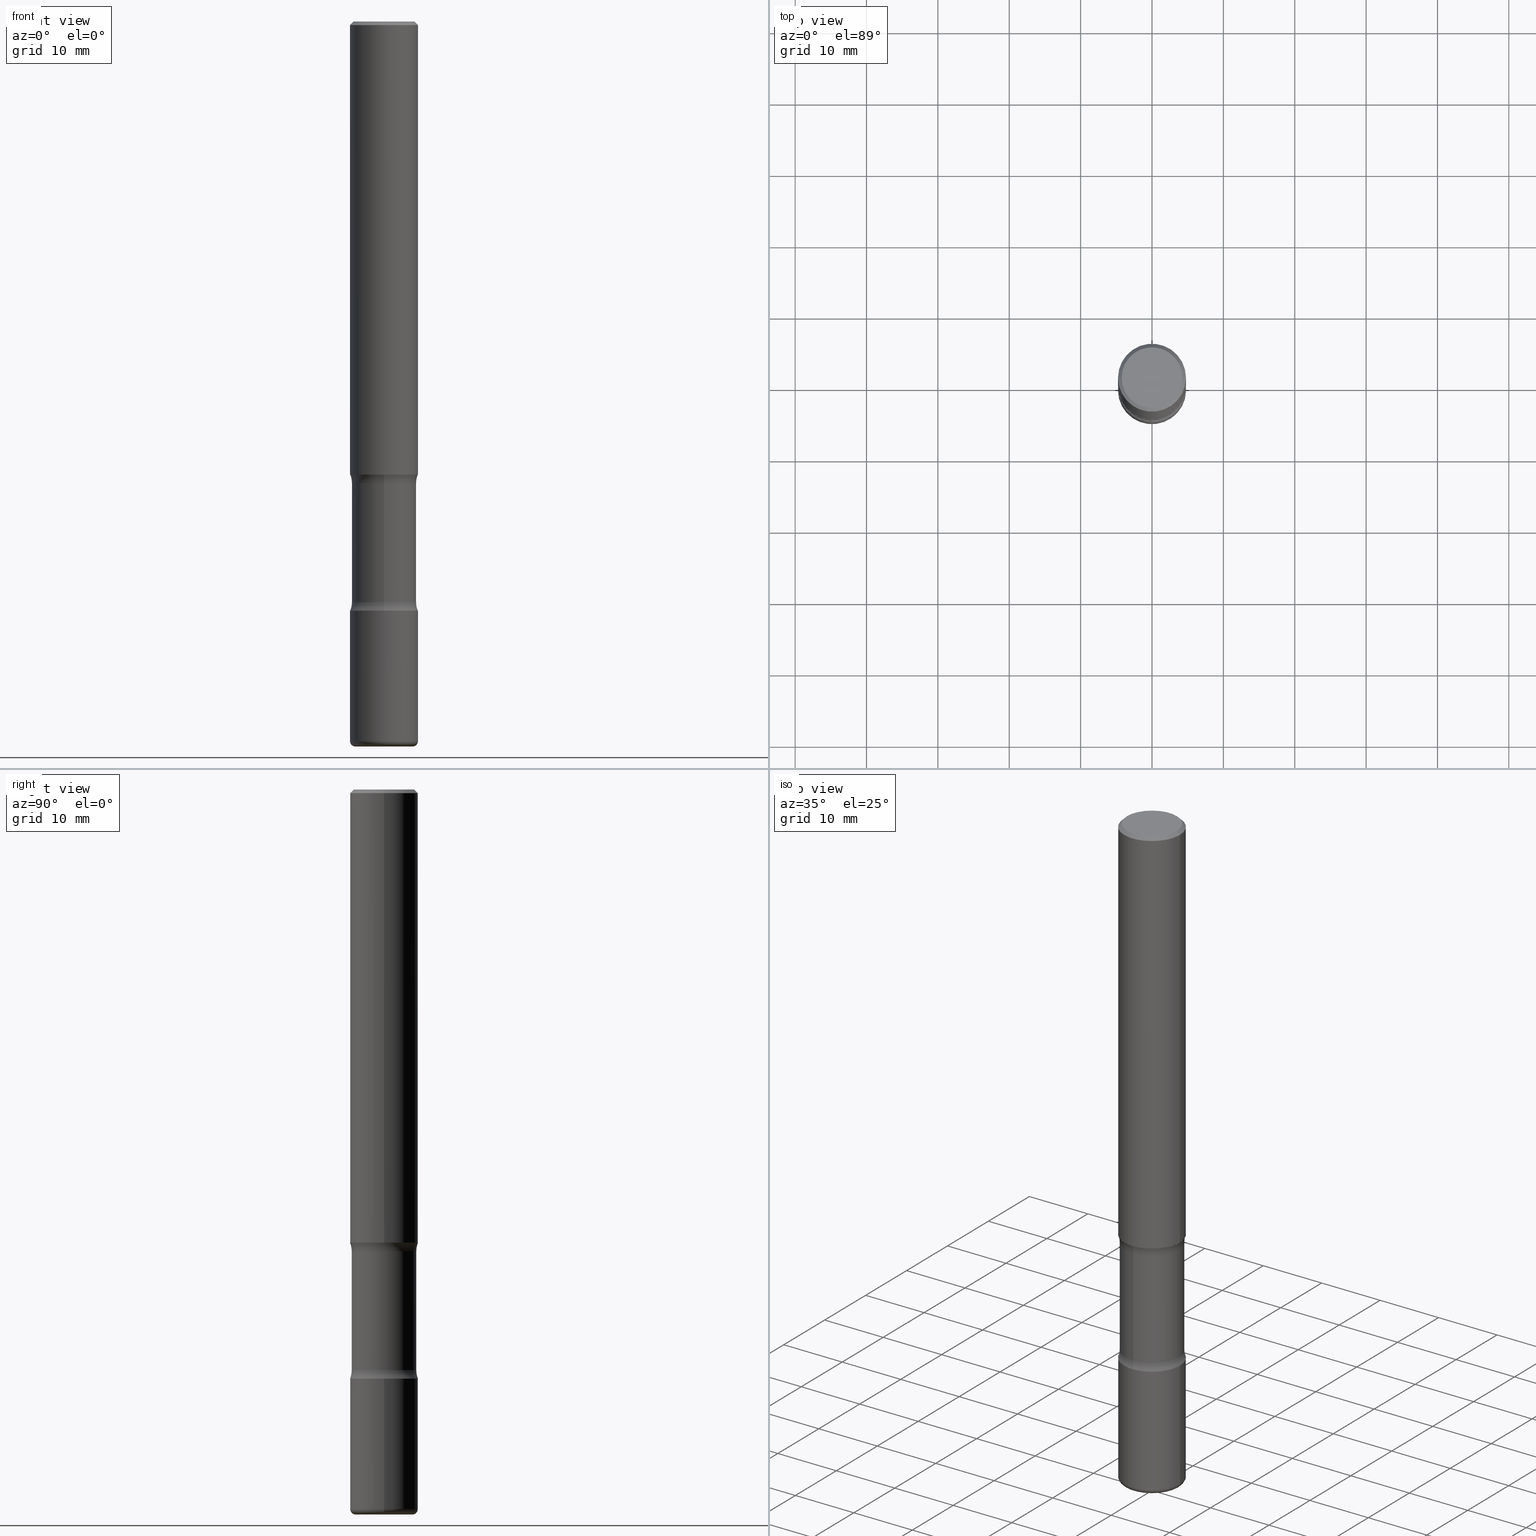
[diagram: canonical four-view strip — front | top / right | iso, engineering-drawing reading convention]
A machine part, canonical four-view strip (front | top / right | iso — engineering-drawing reading convention). The complete STEP part file that produces these views, byte-faithful:
ISO-10303-21;
HEADER;
FILE_DESCRIPTION (( 'STEP AP203' ),
    '1' );
FILE_NAME ('37842.STEP',
    '2024-03-02T00:42:31',
    ( '' ),
    ( '' ),
    'SwSTEP 2.0',
    'SolidWorks 2023',
    '' );
FILE_SCHEMA (( 'CONFIG_CONTROL_DESIGN' ));
ENDSEC;

DATA;
#1 = DIRECTION ( 'NONE',  ( -2.445468806185136597E-29, 3.491481338843145583E-15, 1.000000000000000000 ) ) ;
#2 = EDGE_CURVE ( 'NONE', #383, #272, #325, .T. ) ;
#3 = DIRECTION ( 'NONE',  ( 2.558681667686983511E-29, -3.329354077496592524E-15, -1.000000000000000000 ) ) ;
#4 = COORDINATED_UNIVERSAL_TIME_OFFSET ( 5, 0, .BEHIND. ) ;
#5 = CIRCLE ( 'NONE', #145, 0.1875000000000000833 ) ;
#6 = CARTESIAN_POINT ( 'NONE',  ( 7.831623907624765469E-29, -1.118148334468659010E-14, -3.202504112020091664 ) ) ;
#7 = CLOSED_SHELL ( 'NONE', ( #549, #542, #302, #78, #532, #56 ) ) ;
#8 = DIRECTION ( 'NONE',  ( 1.000000000000000000, 0.000000000000000000, 0.000000000000000000 ) ) ;
#9 = CARTESIAN_POINT ( 'NONE',  ( 6.158285255761511137E-29, -8.996978653423909512E-15, -2.547495887979908780 ) ) ;
#10 = CALENDAR_DATE ( 2024, 1, 3 ) ;
#11 = CARTESIAN_POINT ( 'NONE',  ( 9.781875224740546387E-29, -1.396592535537258233E-14, -4.000000000000000000 ) ) ;
#12 = DIRECTION ( 'NONE',  ( 1.000000000000000000, -6.860497997771530774E-15, 4.842784365940769113E-29 ) ) ;
#13 = EDGE_CURVE ( 'NONE', #383, #555, #441, .T. ) ;
#14 = LINE ( 'NONE', #314, #324 ) ;
#15 = AXIS2_PLACEMENT_3D ( 'NONE', #46, #3, #267 ) ;
#16 = CARTESIAN_POINT ( 'NONE',  ( 0.000000000000000000, 0.000000000000000000, 0.000000000000000000 ) ) ;
#17 = AXIS2_PLACEMENT_3D ( 'NONE', #345, #258, #128 ) ;
#18 = CIRCLE ( 'NONE', #381, 0.1875000000000001110 ) ;
#19 = DIRECTION ( 'NONE',  ( 2.558681667686983511E-29, -3.329354077496592524E-15, -1.000000000000000000 ) ) ;
#20 = DIRECTION ( 'NONE',  ( 2.558681667686983511E-29, -3.329354077496592524E-15, -1.000000000000000000 ) ) ;
#21 = ORIENTED_EDGE ( 'NONE', *, *, #269, .F. ) ;
#22 = DIRECTION ( 'NONE',  ( -2.438088387897960049E-29, 3.491481338843145188E-15, 1.000000000000000000 ) ) ;
#23 = DIRECTION ( 'NONE',  ( 1.000000000000000000, -6.982962677686265922E-15, 0.000000000000000000 ) ) ;
#24 = DIRECTION ( 'NONE',  ( 2.558681667686983511E-29, -3.329354077496592524E-15, -1.000000000000000000 ) ) ;
#25 = AXIS2_PLACEMENT_3D ( 'NONE', #407, #22, #339 ) ;
#26 = CARTESIAN_POINT ( 'NONE',  ( 7.947773620101696182E-29, -1.134731435124022600E-14, -3.250000000000000444 ) ) ;
#27 = ADVANCED_FACE ( 'NONE', ( #305 ), #545, .F. ) ;
#28 = CYLINDRICAL_SURFACE ( 'NONE', #459, 0.1875000000000000278 ) ;
#29 = ORIENTED_EDGE ( 'NONE', *, *, #292, .F. ) ;
#30 = EDGE_CURVE ( 'NONE', #363, #211, #172, .T. ) ;
#31 = ORIENTED_EDGE ( 'NONE', *, *, #266, .F. ) ;
#32 = CIRCLE ( 'NONE', #193, 0.1874999999999999167 ) ;
#33 = FACE_OUTER_BOUND ( 'NONE', #84, .T. ) ;
#34 = ORIENTED_EDGE ( 'NONE', *, *, #166, .T. ) ;
#35 = EDGE_CURVE ( 'NONE', #424, #422, #474, .T. ) ;
#36 = ORIENTED_EDGE ( 'NONE', *, *, #369, .T. ) ;
#37 = EDGE_LOOP ( 'NONE', ( #129, #319 ) ) ;
#38 = CIRCLE ( 'NONE', #157, 0.1874999999999999167 ) ;
#39 = CIRCLE ( 'NONE', #515, 0.1875000000000001110 ) ;
#40 = MECHANICAL_CONTEXT ( 'NONE', #225, 'mechanical' ) ;
#41 = CARTESIAN_POINT ( 'NONE',  ( -0.1875000000000001110, 1.332267629550188637E-15, -9.223003294227953596E-30 ) ) ;
#42 = APPROVAL_STATUS ( 'not_yet_approved' ) ;
#43 = ADVANCED_FACE ( 'NONE', ( #353 ), #113, .F. ) ;
#44 = CARTESIAN_POINT ( 'NONE',  ( 6.158285255761511137E-29, -8.996978653423909512E-15, -2.547495887979908780 ) ) ;
#45 = PERSON_AND_ORGANIZATION ( #164, #295 ) ;
#46 = CARTESIAN_POINT ( 'NONE',  ( 9.866784870866931853E-29, -1.384432990936266734E-14, -4.000000000000000000 ) ) ;
#47 = PERSON_AND_ORGANIZATION ( #164, #295 ) ;
#48 = EDGE_CURVE ( 'NONE', #380, #329, #508, .T. ) ;
#49 = APPROVAL_DATE_TIME ( #436, #149 ) ;
#50 = CIRCLE ( 'NONE', #553, 0.1875000000000001388 ) ;
#51 = LOCAL_TIME ( 19, 42, 31.00000000000000000, #4 ) ;
#52 = CARTESIAN_POINT ( 'NONE',  ( 7.947773620101696182E-29, -1.134731435124022600E-14, -3.250000000000000444 ) ) ;
#53 = PERSON_AND_ORGANIZATION ( #164, #295 ) ;
#54 = CARTESIAN_POINT ( 'NONE',  ( 2.116710561673727694E-15, 0.3031249999999888201, -3.202504112020092997 ) ) ;
#55 = CARTESIAN_POINT ( 'NONE',  ( 9.708511160554993993E-29, -1.386118091520729054E-14, -3.970000000000000639 ) ) ;
#56 = ADVANCED_FACE ( 'NONE', ( #310 ), #478, .T. ) ;
#57 = APPROVAL_DATE_TIME ( #348, #351 ) ;
#58 = CARTESIAN_POINT ( 'NONE',  ( 7.947773620101696182E-29, -1.134731435124022600E-14, -3.250000000000000444 ) ) ;
#59 = DIRECTION ( 'NONE',  ( 2.445468806185136597E-29, -3.491481338843145583E-15, -1.000000000000000000 ) ) ;
#60 = ORIENTED_EDGE ( 'NONE', *, *, #35, .F. ) ;
#61 = DIRECTION ( 'NONE',  ( -2.445468806185136877E-29, 3.491481338843145188E-15, 1.000000000000000000 ) ) ;
#62 = CONICAL_SURFACE ( 'NONE', #366, 0.1874999999999999167, 0.7853981633974472798 ) ;
#63 = DIRECTION ( 'NONE',  ( 6.982962677686266711E-15, 1.000000000000000000, -3.067338098149349089E-15 ) ) ;
#64 = AXIS2_PLACEMENT_3D ( 'NONE', #524, #399, #483 ) ;
#65 = ADVANCED_FACE ( 'NONE', ( #484 ), #438, .F. ) ;
#66 = DIRECTION ( 'NONE',  ( 6.982962677686266711E-15, 1.000000000000000000, -3.067338098149349089E-15 ) ) ;
#67 = PLANE ( 'NONE',  #86 ) ;
#68 = ORIENTED_EDGE ( 'NONE', *, *, #2, .T. ) ;
#69 = CARTESIAN_POINT ( 'NONE',  ( 7.947773620101696182E-29, -1.134731435124022600E-14, -3.250000000000000444 ) ) ;
#70 = VERTEX_POINT ( 'NONE', #93 ) ;
#71 = PLANE ( 'NONE',  #311 ) ;
#72 = CC_DESIGN_DATE_AND_TIME_ASSIGNMENT ( #220, #138, ( #536 ) ) ;
#73 = CARTESIAN_POINT ( 'NONE',  ( 0.1874999999999999722, -1.517048641727346712E-14, -3.970000000000000639 ) ) ;
#74 = AXIS2_PLACEMENT_3D ( 'NONE', #94, #231, #320 ) ;
#75 = DIRECTION ( 'NONE',  ( 6.982962677686266711E-15, 1.000000000000000000, -3.067338098149349089E-15 ) ) ;
#76 = ORIENTED_EDGE ( 'NONE', *, *, #111, .T. ) ;
#77 = ORIENTED_EDGE ( 'NONE', *, *, #112, .F. ) ;
#78 = ADVANCED_FACE ( 'NONE', ( #216 ), #346, .F. ) ;
#79 = ORIENTED_EDGE ( 'NONE', *, *, #527, .F. ) ;
#80 = AXIS2_PLACEMENT_3D ( 'NONE', #408, #199, #165 ) ;
#81 = DIRECTION ( 'NONE',  ( -2.445468806185136597E-29, 3.491481338843145583E-15, 1.000000000000000000 ) ) ;
#82 = AXIS2_PLACEMENT_3D ( 'NONE', #55, #1, #523 ) ;
#83 = ORIENTED_EDGE ( 'NONE', *, *, #151, .F. ) ;
#84 = EDGE_LOOP ( 'NONE', ( #209, #461, #178, #21 ) ) ;
#85 = ORIENTED_EDGE ( 'NONE', *, *, #395, .F. ) ;
#86 = AXIS2_PLACEMENT_3D ( 'NONE', #274, #537, #367 ) ;
#87 = CIRCLE ( 'NONE', #301, 0.1250000000000000278 ) ;
#88 = CARTESIAN_POINT ( 'NONE',  ( 1.309305502066255275E-15, 0.1874999999999887867, -3.250000000000001332 ) ) ;
#89 = DIRECTION ( 'NONE',  ( -2.445468806185136877E-29, 3.491481338843145188E-15, 1.000000000000000000 ) ) ;
#90 = PERSON_AND_ORGANIZATION ( #164, #295 ) ;
#91 = DIRECTION ( 'NONE',  ( 2.558681667686983511E-29, -3.329354077496592524E-15, -1.000000000000000000 ) ) ;
#92 = CC_DESIGN_PERSON_AND_ORGANIZATION_ASSIGNMENT ( #501, #455, ( #146 ) ) ;
#93 = CARTESIAN_POINT ( 'NONE',  ( -0.1874999999999999167, 1.239475875289311118E-15, -0.02000000000000006981 ) ) ;
#94 = CARTESIAN_POINT ( 'NONE',  ( 7.826246762236988201E-29, -1.118918372292999451E-14, -3.202504112020091664 ) ) ;
#95 = ADVANCED_FACE ( 'NONE', ( #264 ), #388, .T. ) ;
#96 = ORIENTED_EDGE ( 'NONE', *, *, #266, .T. ) ;
#97 = CARTESIAN_POINT ( 'NONE',  ( 1.309305502066236145E-15, 0.1874999999999913125, -2.500000000000000444 ) ) ;
#98 = DIRECTION ( 'NONE',  ( -6.982962677686267499E-15, -1.000000000000000000, 0.000000000000000000 ) ) ;
#99 = CARTESIAN_POINT ( 'NONE',  ( 0.000000000000000000, 0.000000000000000000, 0.000000000000000000 ) ) ;
#100 = CARTESIAN_POINT ( 'NONE',  ( 0.1874999999999999167, -1.356173001359024677E-15, -0.02000000000000006981 ) ) ;
#101 = ADVANCED_FACE ( 'NONE', ( #268 ), #308, .F. ) ;
#102 = FACE_OUTER_BOUND ( 'NONE', #538, .T. ) ;
#103 = DIRECTION ( 'NONE',  ( -6.982962677686267499E-15, -1.000000000000000000, 0.000000000000000000 ) ) ;
#104 = FACE_OUTER_BOUND ( 'NONE', #152, .T. ) ;
#105 = ORIENTED_EDGE ( 'NONE', *, *, #369, .F. ) ;
#106 = EDGE_CURVE ( 'NONE', #341, #555, #5, .T. ) ;
#107 = DIRECTION ( 'NONE',  ( 2.558681667686983511E-29, -3.329354077496592524E-15, -1.000000000000000000 ) ) ;
#108 = CARTESIAN_POINT ( 'NONE',  ( 4.890937612370289799E-31, -6.982962677686315028E-17, -0.02000000000000006981 ) ) ;
#109 = EDGE_LOOP ( 'NONE', ( #114, #416, #76, #105 ) ) ;
#110 = LINE ( 'NONE', #290, #520 ) ;
#111 = EDGE_CURVE ( 'NONE', #371, #70, #38, .T. ) ;
#112 = EDGE_CURVE ( 'NONE', #272, #341, #321, .T. ) ;
#113 = TOROIDAL_SURFACE ( 'NONE', #201, 0.3031249999999999778, 0.1250000000000000278 ) ;
#114 = ORIENTED_EDGE ( 'NONE', *, *, #313, .F. ) ;
#115 = CLOSED_SHELL ( 'NONE', ( #429, #551, #445, #118, #386, #377 ) ) ;
#116 = PRODUCT_DEFINITION_SHAPE ( 'NONE', 'NONE',  #536 ) ;
#117 = DIRECTION ( 'NONE',  ( -2.445468806185136597E-29, 3.491481338843145583E-15, 1.000000000000000000 ) ) ;
#118 = ADVANCED_FACE ( 'NONE', ( #102 ), #334, .T. ) ;
#119 = ORIENTED_EDGE ( 'NONE', *, *, #111, .F. ) ;
#120 = CARTESIAN_POINT ( 'NONE',  ( 0.1875000000000000833, -1.265661985330640259E-14, -3.250000000000000444 ) ) ;
#121 = CARTESIAN_POINT ( 'NONE',  ( 0.000000000000000000, 0.000000000000000000, 0.000000000000000000 ) ) ;
#122 = ORIENTED_EDGE ( 'NONE', *, *, #112, .T. ) ;
#123 = CARTESIAN_POINT ( 'NONE',  ( 0.000000000000000000, 0.000000000000000000, 0.000000000000000000 ) ) ;
#124 = LINE ( 'NONE', #387, #263 ) ;
#125 = EDGE_LOOP ( 'NONE', ( #466, #454, #294, #212 ) ) ;
#126 = CIRCLE ( 'NONE', #80, 0.1575000000000001676 ) ;
#127 = APPROVAL_PERSON_ORGANIZATION ( #47, #351, #306 ) ;
#128 = DIRECTION ( 'NONE',  ( -1.000000000000000000, 6.982962677686265922E-15, 0.000000000000000000 ) ) ;
#129 = ORIENTED_EDGE ( 'NONE', *, *, #402, .T. ) ;
#130 = DIRECTION ( 'NONE',  ( -2.445468806185136597E-29, 3.491481338843145583E-15, 1.000000000000000000 ) ) ;
#131 = ORIENTED_EDGE ( 'NONE', *, *, #151, .T. ) ;
#132 = PERSON_AND_ORGANIZATION_ROLE ( 'creator' ) ;
#133 = DIRECTION ( 'NONE',  ( 1.000000000000000000, -6.982962677686263555E-15, 0.000000000000000000 ) ) ;
#134 = CIRCLE ( 'NONE', #448, 0.1781249999999999500 ) ;
#135 = CARTESIAN_POINT ( 'NONE',  ( 0.000000000000000000, 0.000000000000000000, 0.000000000000000000 ) ) ;
#136 = CARTESIAN_POINT ( 'NONE',  ( 0.000000000000000000, 0.000000000000000000, 0.000000000000000000 ) ) ;
#137 = CC_DESIGN_PERSON_AND_ORGANIZATION_ASSIGNMENT ( #53, #223, ( #171 ) ) ;
#138 = DATE_TIME_ROLE ( 'creation_date' ) ;
#139 = CARTESIAN_POINT ( 'NONE',  ( -0.1674999999999998990, 1.204561061900880061E-15, -8.301862719484106184E-30 ) ) ;
#140 = DIRECTION ( 'NONE',  ( 6.860497997771529985E-15, 1.000000000000000000, 0.000000000000000000 ) ) ;
#141 = EDGE_CURVE ( 'NONE', #555, #341, #224, .T. ) ;
#142 = DIRECTION ( 'NONE',  ( 6.982962677686266711E-15, 1.000000000000000000, -3.329354077496592130E-15 ) ) ;
#143 = SECURITY_CLASSIFICATION_LEVEL ( 'unclassified' ) ;
#144 = FACE_OUTER_BOUND ( 'NONE', #167, .T. ) ;
#145 = AXIS2_PLACEMENT_3D ( 'NONE', #52, #227, #447 ) ;
#146 = PRODUCT_DEFINITION_FORMATION_WITH_SPECIFIED_SOURCE ( 'ANY', '', #315, .NOT_KNOWN. ) ;
#147 = DIRECTION ( 'NONE',  ( 1.000000000000000000, -6.982962677686267499E-15, 0.000000000000000000 ) ) ;
#148 = CARTESIAN_POINT ( 'NONE',  ( -1.286343374582102609E-15, -0.1875000000000089651, -2.499999999999999556 ) ) ;
#149 = APPROVAL ( #390, 'UNSPECIFIED' ) ;
#150 = CARTESIAN_POINT ( 'NONE',  ( 6.150289227201164007E-29, -9.008429421428009851E-15, -2.547495887979908780 ) ) ;
#151 = EDGE_CURVE ( 'NONE', #175, #205, #493, .T. ) ;
#152 = EDGE_LOOP ( 'NONE', ( #338, #194, #36, #252 ) ) ;
#153 = DIRECTION ( 'NONE',  ( 2.438088387897960049E-29, -3.491481338843145188E-15, -1.000000000000000000 ) ) ;
#154 = DIRECTION ( 'NONE',  ( -2.445468806185136597E-29, 3.491481338843145583E-15, 1.000000000000000000 ) ) ;
#155 = ORIENTED_EDGE ( 'NONE', *, *, #177, .F. ) ;
#156 = COORDINATED_UNIVERSAL_TIME_OFFSET ( 5, 0, .BEHIND. ) ;
#157 = AXIS2_PLACEMENT_3D ( 'NONE', #495, #361, #534 ) ;
#158 = CARTESIAN_POINT ( 'NONE',  ( 2.116710561673711128E-15, 0.3031249999999910405, -2.547495887979910112 ) ) ;
#159 = LOCAL_TIME ( 19, 42, 31.00000000000000000, #531 ) ;
#160 = ORIENTED_EDGE ( 'NONE', *, *, #527, .T. ) ;
#161 = VECTOR ( 'NONE', #89, 39.37007874015748143 ) ;
#162 = PERSON_AND_ORGANIZATION_ROLE ( 'creator' ) ;
#163 = CARTESIAN_POINT ( 'NONE',  ( 9.708511160554993993E-29, -1.386118091520729054E-14, -3.970000000000000639 ) ) ;
#164 = PERSON ( 'UNSPECIFIED', 'UNSPECIFIED', 'UNSPECIFIED', ('UNSPECIFIED'), ('UNSPECIFIED'), ('UNSPECIFIED') ) ;
#165 = DIRECTION ( 'NONE',  ( 1.000000000000000000, -6.982962677686267499E-15, 0.000000000000000000 ) ) ;
#166 = EDGE_CURVE ( 'NONE', #380, #560, #356, .T. ) ;
#167 = EDGE_LOOP ( 'NONE', ( #257, #253, #509, #77 ) ) ;
#168 = AXIS2_PLACEMENT_3D ( 'NONE', #16, #359, #331 ) ;
#169 = ORIENTED_EDGE ( 'NONE', *, *, #330, .F. ) ;
#170 = DIMENSIONAL_EXPONENTS ( 1.000000000000000000, 0.000000000000000000, 0.000000000000000000, 0.000000000000000000, 0.000000000000000000, 0.000000000000000000, 0.000000000000000000 ) ;
#171 = SECURITY_CLASSIFICATION ( '', '', #143 ) ;
#172 = CIRCLE ( 'NONE', #293, 0.1875000000000001110 ) ;
#173 = ORIENTED_EDGE ( 'NONE', *, *, #233, .T. ) ;
#174 = ORIENTED_EDGE ( 'NONE', *, *, #141, .T. ) ;
#175 = VERTEX_POINT ( 'NONE', #188 ) ;
#176 = CC_DESIGN_PERSON_AND_ORGANIZATION_ASSIGNMENT ( #45, #215, ( #315 ) ) ;
#177 = EDGE_CURVE ( 'NONE', #70, #371, #32, .T. ) ;
#178 = ORIENTED_EDGE ( 'NONE', *, *, #332, .F. ) ;
#179 = COORDINATED_UNIVERSAL_TIME_OFFSET ( 5, 0, .BEHIND. ) ;
#180 = ADVANCED_BREP_SHAPE_REPRESENTATION ( '37842', ( #243, #417, #435, #521 ), #335 ) ;
#181 = DIRECTION ( 'NONE',  ( 6.860497997771532351E-15, 1.000000000000000000, 0.000000000000000000 ) ) ;
#182 = DIRECTION ( 'NONE',  ( 6.982962677686266711E-15, 1.000000000000000000, -3.329354077496592130E-15 ) ) ;
#183 = AXIS2_PLACEMENT_3D ( 'NONE', #9, #434, #182 ) ;
#184 = DIRECTION ( 'NONE',  ( 1.000000000000000000, -6.982962677686266711E-15, 4.876176775795935793E-29 ) ) ;
#185 = CALENDAR_DATE ( 2024, 1, 3 ) ;
#186 = DIRECTION ( 'NONE',  ( -2.445468806185136597E-29, 3.491481338843145583E-15, 1.000000000000000000 ) ) ;
#187 = DIRECTION ( 'NONE',  ( 6.982962677686266711E-15, 1.000000000000000000, -2.913971193241879583E-15 ) ) ;
#188 = CARTESIAN_POINT ( 'NONE',  ( 1.243840226962927197E-15, 0.1781249999999909572, -2.547495887979909224 ) ) ;
#189 = CARTESIAN_POINT ( 'NONE',  ( 0.1674999999999998990, -1.252653207992877500E-15, 8.469775550109235181E-30 ) ) ;
#190 = CIRCLE ( 'NONE', #300, 0.1781249999999999223 ) ;
#191 = LOCAL_TIME ( 19, 42, 31.00000000000000000, #179 ) ;
#192 = CARTESIAN_POINT ( 'NONE',  ( 7.826246762236988201E-29, -1.118918372292999451E-14, -3.202504112020091664 ) ) ;
#193 = AXIS2_PLACEMENT_3D ( 'NONE', #108, #154, #23 ) ;
#194 = ORIENTED_EDGE ( 'NONE', *, *, #402, .F. ) ;
#195 = CARTESIAN_POINT ( 'NONE',  ( -1.222026205852954821E-15, -0.1781250000000138001, -3.999999999999999556 ) ) ;
#196 = DIRECTION ( 'NONE',  ( -2.445468806185136597E-29, 3.491481338843145583E-15, 1.000000000000000000 ) ) ;
#197 = LINE ( 'NONE', #195, #485 ) ;
#198 = APPROVAL ( #273, 'UNSPECIFIED' ) ;
#199 = DIRECTION ( 'NONE',  ( -2.445468806185136597E-29, 3.491481338843145583E-15, 1.000000000000000000 ) ) ;
#200 = ORIENTED_EDGE ( 'NONE', *, *, #298, .F. ) ;
#201 = AXIS2_PLACEMENT_3D ( 'NONE', #6, #219, #142 ) ;
#202 = DIRECTION ( 'NONE',  ( 1.000000000000000000, -6.982962677686269077E-15, 4.883557194083112901E-29 ) ) ;
#203 = ORIENTED_EDGE ( 'NONE', *, *, #269, .T. ) ;
#204 = DIRECTION ( 'NONE',  ( 1.000000000000000000, -6.982962677686265922E-15, 4.876176775795935793E-29 ) ) ;
#205 = VERTEX_POINT ( 'NONE', #529 ) ;
#206 = EDGE_CURVE ( 'NONE', #285, #391, #477, .T. ) ;
#207 = AXIS2_PLACEMENT_3D ( 'NONE', #222, #349, #437 ) ;
#208 = EDGE_LOOP ( 'NONE', ( #289, #548, #250, #160 ) ) ;
#209 = ORIENTED_EDGE ( 'NONE', *, *, #206, .T. ) ;
#210 = ADVANCED_FACE ( 'NONE', ( #411 ), #67, .F. ) ;
#211 = VERTEX_POINT ( 'NONE', #546 ) ;
#212 = ORIENTED_EDGE ( 'NONE', *, *, #463, .F. ) ;
#213 = AXIS2_PLACEMENT_3D ( 'NONE', #150, #456, #63 ) ;
#214 = PERSON_AND_ORGANIZATION ( #164, #295 ) ;
#215 = PERSON_AND_ORGANIZATION_ROLE ( 'design_owner' ) ;
#216 = FACE_OUTER_BOUND ( 'NONE', #37, .T. ) ;
#217 = PRODUCT_RELATED_PRODUCT_CATEGORY ( 'detail', '', ( #315 ) ) ;
#218 =( NAMED_UNIT ( * ) PLANE_ANGLE_UNIT ( ) SI_UNIT ( $, .RADIAN. ) );
#219 = DIRECTION ( 'NONE',  ( 2.558681667686983511E-29, -3.329354077496592524E-15, -1.000000000000000000 ) ) ;
#220 = DATE_AND_TIME ( #303, #159 ) ;
#221 = APPLICATION_PROTOCOL_DEFINITION ( 'international standard', 'config_control_design', 1994, #254 ) ;
#222 = CARTESIAN_POINT ( 'NONE',  ( 7.947773620101696182E-29, -1.134731435124022600E-14, -3.250000000000000444 ) ) ;
#223 = PERSON_AND_ORGANIZATION_ROLE ( 'classification_officer' ) ;
#224 = CIRCLE ( 'NONE', #528, 0.1875000000000000833 ) ;
#225 = APPLICATION_CONTEXT ( 'configuration controlled 3d designs of mechanical parts and assemblies' ) ;
#226 = AXIS2_PLACEMENT_3D ( 'NONE', #228, #19, #404 ) ;
#227 = DIRECTION ( 'NONE',  ( -2.445468806185136597E-29, 3.491481338843145583E-15, 1.000000000000000000 ) ) ;
#228 = CARTESIAN_POINT ( 'NONE',  ( 6.028762369336457147E-29, -8.850298793117778356E-15, -2.500000000000000000 ) ) ;
#229 = DIRECTION ( 'NONE',  ( -2.445468806185136597E-29, 3.491481338843145583E-15, 1.000000000000000000 ) ) ;
#230 = EDGE_LOOP ( 'NONE', ( #504, #412, #119, #169 ) ) ;
#231 = DIRECTION ( 'NONE',  ( 2.558681667686983511E-29, -3.329354077496592524E-15, -1.000000000000000000 ) ) ;
#232 = DIRECTION ( 'NONE',  ( -1.000000000000000000, 6.982962677686265922E-15, 0.000000000000000000 ) ) ;
#233 = EDGE_CURVE ( 'NONE', #175, #424, #401, .T. ) ;
#234 = EDGE_LOOP ( 'NONE', ( #425, #283, #471, #155 ) ) ;
#235 = DIRECTION ( 'NONE',  ( 2.558681667686983511E-29, -3.329354077496592524E-15, -1.000000000000000000 ) ) ;
#236 = AXIS2_PLACEMENT_3D ( 'NONE', #350, #518, #299 ) ;
#237 = CIRCLE ( 'NONE', #226, 0.1875000000000001388 ) ;
#238 = DIRECTION ( 'NONE',  ( 0.7071067811865467956, -7.319954787623254468E-15, -0.7071067811865482389 ) ) ;
#239 = PLANE ( 'NONE',  #25 ) ;
#240 = LINE ( 'NONE', #100, #323 ) ;
#241 = DIRECTION ( 'NONE',  ( 2.558681667686983511E-29, -3.329354077496592524E-15, -1.000000000000000000 ) ) ;
#242 = DIRECTION ( 'NONE',  ( -2.445468806185136877E-29, 3.491481338843145188E-15, 1.000000000000000000 ) ) ;
#243 = MANIFOLD_SOLID_BREP ( 'Body-Move/Copy2[1]', #115 ) ;
#244 = AXIS2_PLACEMENT_3D ( 'NONE', #316, #540, #328 ) ;
#245 = CONICAL_SURFACE ( 'NONE', #17, 0.1874999999999999167, 0.7853981633974472798 ) ;
#246 = CARTESIAN_POINT ( 'NONE',  ( 7.947773620101696182E-29, -1.134731435124022600E-14, -3.250000000000000444 ) ) ;
#247 = PERSON_AND_ORGANIZATION ( #164, #295 ) ;
#248 = CARTESIAN_POINT ( 'NONE',  ( 6.150289227201164007E-29, -9.008429421428009851E-15, -2.547495887979908780 ) ) ;
#249 = FACE_OUTER_BOUND ( 'NONE', #230, .T. ) ;
#250 = ORIENTED_EDGE ( 'NONE', *, *, #463, .T. ) ;
#251 = EDGE_CURVE ( 'NONE', #476, #371, #240, .T. ) ;
#252 = ORIENTED_EDGE ( 'NONE', *, *, #177, .T. ) ;
#253 = ORIENTED_EDGE ( 'NONE', *, *, #13, .T. ) ;
#254 = APPLICATION_CONTEXT ( 'configuration controlled 3d designs of mechanical parts and assemblies' ) ;
#255 = ORIENTED_EDGE ( 'NONE', *, *, #30, .F. ) ;
#256 = CARTESIAN_POINT ( 'NONE',  ( 9.708511160554993993E-29, -1.386118091520729054E-14, -3.970000000000000639 ) ) ;
#257 = ORIENTED_EDGE ( 'NONE', *, *, #332, .T. ) ;
#258 = DIRECTION ( 'NONE',  ( 2.445468806185136597E-29, -3.491481338843145583E-15, -1.000000000000000000 ) ) ;
#259 = CARTESIAN_POINT ( 'NONE',  ( 6.113672015462842613E-29, -8.728703347107864943E-15, -2.500000000000000000 ) ) ;
#260 = CIRCLE ( 'NONE', #244, 0.02999999999999967970 ) ;
#261 = TOROIDAL_SURFACE ( 'NONE', #374, 0.1575000000000001676, 0.02999999999999967970 ) ;
#262 = FACE_OUTER_BOUND ( 'NONE', #109, .T. ) ;
#263 = VECTOR ( 'NONE', #277, 39.37007874015748143 ) ;
#264 = FACE_OUTER_BOUND ( 'NONE', #297, .T. ) ;
#265 = CC_DESIGN_PERSON_AND_ORGANIZATION_ASSIGNMENT ( #214, #132, ( #536 ) ) ;
#266 = EDGE_CURVE ( 'NONE', #391, #285, #126, .T. ) ;
#267 = DIRECTION ( 'NONE',  ( 6.982962677686266711E-15, 1.000000000000000000, -3.067338098149349089E-15 ) ) ;
#268 = FACE_OUTER_BOUND ( 'NONE', #344, .T. ) ;
#269 = EDGE_CURVE ( 'NONE', #285, #272, #260, .T. ) ;
#270 = DIRECTION ( 'NONE',  ( 1.000000000000000000, -6.982962677686269077E-15, 0.000000000000000000 ) ) ;
#271 = DIRECTION ( 'NONE',  ( 6.982962677686265133E-15, 1.000000000000000000, -3.067338098149349483E-15 ) ) ;
#272 = VERTEX_POINT ( 'NONE', #73 ) ;
#273 = APPROVAL_STATUS ( 'not_yet_approved' ) ;
#274 = CARTESIAN_POINT ( 'NONE',  ( 6.113672015462842613E-29, -8.728703347107864943E-15, -2.500000000000000000 ) ) ;
#275 = DIRECTION ( 'NONE',  ( 1.000000000000000000, -6.982962677686266711E-15, 4.876176775795935793E-29 ) ) ;
#276 = AXIS2_PLACEMENT_3D ( 'NONE', #279, #364, #202 ) ;
#277 = DIRECTION ( 'NONE',  ( -2.445468806185136877E-29, 3.491481338843145188E-15, 1.000000000000000000 ) ) ;
#278 = APPROVAL_PERSON_ORGANIZATION ( #247, #198, #543 ) ;
#279 = CARTESIAN_POINT ( 'NONE',  ( 9.708511160554993993E-29, -1.386118091520729054E-14, -3.970000000000000639 ) ) ;
#280 = CYLINDRICAL_SURFACE ( 'NONE', #343, 0.1875000000000001110 ) ;
#281 = EDGE_CURVE ( 'NONE', #175, #472, #392, .T. ) ;
#282 = CARTESIAN_POINT ( 'NONE',  ( 4.890937612370289799E-31, -6.982962677686315028E-17, -0.02000000000000006981 ) ) ;
#283 = ORIENTED_EDGE ( 'NONE', *, *, #30, .T. ) ;
#284 = DIRECTION ( 'NONE',  ( 2.558681667686983511E-29, -3.329354077496592524E-15, -1.000000000000000000 ) ) ;
#285 = VERTEX_POINT ( 'NONE', #326 ) ;
#286 = AXIS2_PLACEMENT_3D ( 'NONE', #246, #450, #414 ) ;
#287 = APPROVAL_PERSON_ORGANIZATION ( #90, #149, #433 ) ;
#288 = ORIENTED_EDGE ( 'NONE', *, *, #106, .T. ) ;
#289 = ORIENTED_EDGE ( 'NONE', *, *, #48, .F. ) ;
#290 = CARTESIAN_POINT ( 'NONE',  ( -0.1874999999999999167, 1.239475875289311118E-15, -0.02000000000000006981 ) ) ;
#291 = ORIENTED_EDGE ( 'NONE', *, *, #141, .F. ) ;
#292 = EDGE_CURVE ( 'NONE', #472, #422, #50, .T. ) ;
#293 = AXIS2_PLACEMENT_3D ( 'NONE', #259, #186, #133 ) ;
#294 = ORIENTED_EDGE ( 'NONE', *, *, #298, .T. ) ;
#295 = ORGANIZATION ( 'UNSPECIFIED', 'UNSPECIFIED', '' ) ;
#296 = ORIENTED_EDGE ( 'NONE', *, *, #206, .F. ) ;
#297 = EDGE_LOOP ( 'NONE', ( #173, #419, #79, #83 ) ) ;
#298 = EDGE_CURVE ( 'NONE', #329, #205, #190, .T. ) ;
#299 = DIRECTION ( 'NONE',  ( -1.000000000000000000, 6.982962677686265922E-15, -4.876176775795935793E-29 ) ) ;
#300 = AXIS2_PLACEMENT_3D ( 'NONE', #192, #20, #271 ) ;
#301 = AXIS2_PLACEMENT_3D ( 'NONE', #54, #526, #103 ) ;
#302 = ADVANCED_FACE ( 'NONE', ( #104 ), #62, .T. ) ;
#303 = CALENDAR_DATE ( 2024, 1, 3 ) ;
#304 = DIRECTION ( 'NONE',  ( 0.000000000000000000, 0.000000000000000000, 1.000000000000000000 ) ) ;
#305 = FACE_OUTER_BOUND ( 'NONE', #370, .T. ) ;
#306 = APPROVAL_ROLE ( '' ) ;
#307 = APPLICATION_PROTOCOL_DEFINITION ( 'international standard', 'config_control_design', 1994, #225 ) ;
#308 = PLANE ( 'NONE',  #207 ) ;
#309 = CARTESIAN_POINT ( 'NONE',  ( 9.866784870866931853E-29, -1.384432990936266734E-14, -4.000000000000000000 ) ) ;
#310 = FACE_OUTER_BOUND ( 'NONE', #234, .T. ) ;
#311 = AXIS2_PLACEMENT_3D ( 'NONE', #26, #333, #510 ) ;
#312 = AXIS2_PLACEMENT_3D ( 'NONE', #309, #235, #66 ) ;
#313 = EDGE_CURVE ( 'NONE', #476, #557, #431, .T. ) ;
#314 = CARTESIAN_POINT ( 'NONE',  ( -0.1875000000000000278, 1.332267629550188046E-15, -9.223003294227947991E-30 ) ) ;
#315 = PRODUCT ( '37842', '37842', '', ( #40 ) ) ;
#316 = CARTESIAN_POINT ( 'NONE',  ( 0.1575000000000001676, -1.496099753694287723E-14, -3.970000000000000639 ) ) ;
#317 = CARTESIAN_POINT ( 'NONE',  ( -1.254184790217547253E-15, -0.1781250000000089706, -2.547495887979908336 ) ) ;
#318 = CARTESIAN_POINT ( 'NONE',  ( 6.028762369336457147E-29, -8.850298793117778356E-15, -2.500000000000000000 ) ) ;
#319 = ORIENTED_EDGE ( 'NONE', *, *, #313, .T. ) ;
#320 = DIRECTION ( 'NONE',  ( 6.982962677686265133E-15, 1.000000000000000000, -3.067338098149349483E-15 ) ) ;
#321 = LINE ( 'NONE', #453, #541 ) ;
#322 = DATE_AND_TIME ( #490, #357 ) ;
#323 = VECTOR ( 'NONE', #238, 39.37007874015748143 ) ;
#324 = VECTOR ( 'NONE', #61, 39.37007874015748143 ) ;
#325 = CIRCLE ( 'NONE', #82, 0.1875000000000001110 ) ;
#326 = CARTESIAN_POINT ( 'NONE',  ( 0.1575000000000001676, -1.506574197710817060E-14, -4.000000000000000000 ) ) ;
#327 = ORIENTED_EDGE ( 'NONE', *, *, #362, .T. ) ;
#328 = DIRECTION ( 'NONE',  ( 1.000000000000000000, -6.982962677686277755E-15, 0.000000000000000000 ) ) ;
#329 = VERTEX_POINT ( 'NONE', #375 ) ;
#330 = EDGE_CURVE ( 'NONE', #211, #371, #124, .T. ) ;
#331 = DIRECTION ( 'NONE',  ( 1.000000000000000000, -6.982962677686265922E-15, 4.876176775795935793E-29 ) ) ;
#332 = EDGE_CURVE ( 'NONE', #272, #383, #18, .T. ) ;
#333 = DIRECTION ( 'NONE',  ( 2.438088387897960049E-29, -3.491481338843145188E-15, -1.000000000000000000 ) ) ;
#334 = TOROIDAL_SURFACE ( 'NONE', #276, 0.1575000000000001676, 0.02999999999999967970 ) ;
#335 =( GEOMETRIC_REPRESENTATION_CONTEXT ( 3 ) GLOBAL_UNCERTAINTY_ASSIGNED_CONTEXT ( ( #378 ) ) GLOBAL_UNIT_ASSIGNED_CONTEXT ( ( #426, #218, #525 ) ) REPRESENTATION_CONTEXT ( 'NONE', 'WORKASPACE' ) );
#336 = ORIENTED_EDGE ( 'NONE', *, *, #281, .F. ) ;
#337 = AXIS2_PLACEMENT_3D ( 'NONE', #400, #196, #147 ) ;
#338 = ORIENTED_EDGE ( 'NONE', *, *, #251, .F. ) ;
#339 = DIRECTION ( 'NONE',  ( 1.000000000000000000, -6.982962677686265922E-15, 4.876176775795935793E-29 ) ) ;
#340 = FACE_OUTER_BOUND ( 'NONE', #516, .T. ) ;
#341 = VERTEX_POINT ( 'NONE', #120 ) ;
#342 = EDGE_CURVE ( 'NONE', #391, #383, #405, .T. ) ;
#343 = AXIS2_PLACEMENT_3D ( 'NONE', #99, #535, #275 ) ;
#344 = EDGE_LOOP ( 'NONE', ( #376, #34 ) ) ;
#345 = CARTESIAN_POINT ( 'NONE',  ( 4.890937612370289799E-31, -6.982962677686315028E-17, -0.02000000000000006981 ) ) ;
#346 = PLANE ( 'NONE',  #236 ) ;
#347 = ORIENTED_EDGE ( 'NONE', *, *, #342, .F. ) ;
#348 = DATE_AND_TIME ( #10, #506 ) ;
#349 = DIRECTION ( 'NONE',  ( -2.558681667686982950E-29, 3.329354077496592524E-15, 1.000000000000000000 ) ) ;
#350 = CARTESIAN_POINT ( 'NONE',  ( 1.169646248512448806E-15, 0.1674999999999998990, -5.848231242562264739E-16 ) ) ;
#351 = APPROVAL ( #42, 'UNSPECIFIED' ) ;
#352 = FACE_OUTER_BOUND ( 'NONE', #208, .T. ) ;
#353 = FACE_OUTER_BOUND ( 'NONE', #125, .T. ) ;
#354 = DIRECTION ( 'NONE',  ( 1.000000000000000000, -6.982962677686263555E-15, 0.000000000000000000 ) ) ;
#355 = CARTESIAN_POINT ( 'NONE',  ( 1.243840226962964471E-15, 0.1781249999999861278, -4.000000000000000888 ) ) ;
#356 = CIRCLE ( 'NONE', #286, 0.1875000000000000833 ) ;
#357 = LOCAL_TIME ( 19, 42, 31.00000000000000000, #156 ) ;
#358 = CYLINDRICAL_SURFACE ( 'NONE', #312, 0.1781249999999999500 ) ;
#359 = DIRECTION ( 'NONE',  ( -2.445468806185136597E-29, 3.491481338843145583E-15, 1.000000000000000000 ) ) ;
#360 = ORIENTED_EDGE ( 'NONE', *, *, #492, .F. ) ;
#361 = DIRECTION ( 'NONE',  ( -2.445468806185136597E-29, 3.491481338843145583E-15, 1.000000000000000000 ) ) ;
#362 = EDGE_CURVE ( 'NONE', #424, #175, #134, .T. ) ;
#363 = VERTEX_POINT ( 'NONE', #547 ) ;
#364 = DIRECTION ( 'NONE',  ( -2.445468806185136597E-29, 3.491481338843145583E-15, 1.000000000000000000 ) ) ;
#365 = ORIENTED_EDGE ( 'NONE', *, *, #2, .F. ) ;
#366 = AXIS2_PLACEMENT_3D ( 'NONE', #282, #59, #232 ) ;
#367 = DIRECTION ( 'NONE',  ( 6.982962677686265922E-15, 1.000000000000000000, -3.329354077496592524E-15 ) ) ;
#368 = EDGE_LOOP ( 'NONE', ( #29, #360 ) ) ;
#369 = EDGE_CURVE ( 'NONE', #557, #70, #110, .T. ) ;
#370 = EDGE_LOOP ( 'NONE', ( #60, #494, #511, #384 ) ) ;
#371 = VERTEX_POINT ( 'NONE', #372 ) ;
#372 = CARTESIAN_POINT ( 'NONE',  ( 0.1874999999999999167, -1.356173001359024677E-15, -0.02000000000000006981 ) ) ;
#373 = VECTOR ( 'NONE', #284, 39.37007874015748143 ) ;
#374 = AXIS2_PLACEMENT_3D ( 'NONE', #256, #130, #473 ) ;
#375 = CARTESIAN_POINT ( 'NONE',  ( -1.254184790217529307E-15, -0.1781250000000111355, -3.202504112020091220 ) ) ;
#376 = ORIENTED_EDGE ( 'NONE', *, *, #500, .T. ) ;
#377 = ADVANCED_FACE ( 'NONE', ( #550 ), #71, .F. ) ;
#378 = UNCERTAINTY_MEASURE_WITH_UNIT (LENGTH_MEASURE( 1.000000000000000082E-05 ), #426, 'distance_accuracy_value', 'NONE');
#379 = EDGE_LOOP ( 'NONE', ( #288, #174 ) ) ;
#380 = VERTEX_POINT ( 'NONE', #464 ) ;
#381 = AXIS2_PLACEMENT_3D ( 'NONE', #163, #229, #270 ) ;
#382 = CC_DESIGN_APPROVAL ( #149, ( #536 ) ) ;
#383 = VERTEX_POINT ( 'NONE', #467 ) ;
#384 = ORIENTED_EDGE ( 'NONE', *, *, #292, .T. ) ;
#385 = SHAPE_DEFINITION_REPRESENTATION ( #116, #180 ) ;
#386 = ADVANCED_FACE ( 'NONE', ( #340 ), #423, .T. ) ;
#387 = CARTESIAN_POINT ( 'NONE',  ( 0.1875000000000000278, -1.309305502066175008E-15, 9.142831454617381013E-30 ) ) ;
#388 = CYLINDRICAL_SURFACE ( 'NONE', #15, 0.1781249999999999500 ) ;
#389 = ADVANCED_FACE ( 'NONE', ( #491 ), #358, .T. ) ;
#390 = APPROVAL_STATUS ( 'not_yet_approved' ) ;
#391 = VERTEX_POINT ( 'NONE', #443 ) ;
#392 = CIRCLE ( 'NONE', #427, 0.1250000000000000278 ) ;
#393 = AXIS2_PLACEMENT_3D ( 'NONE', #11, #153, #488 ) ;
#394 =( LENGTH_UNIT ( ) NAMED_UNIT ( * ) SI_UNIT ( $, .METRE. ) );
#395 = EDGE_CURVE ( 'NONE', #424, #329, #197, .T. ) ;
#396 = DIRECTION ( 'NONE',  ( -2.445468806185136597E-29, 3.491481338843145583E-15, 1.000000000000000000 ) ) ;
#397 = DIRECTION ( 'NONE',  ( -2.445468806185136597E-29, 3.491481338843145583E-15, 1.000000000000000000 ) ) ;
#398 = DIRECTION ( 'NONE',  ( 1.000000000000000000, -6.860497997771530774E-15, 4.842784365940769113E-29 ) ) ;
#399 = DIRECTION ( 'NONE',  ( 2.558681667686983511E-29, -3.329354077496592524E-15, -1.000000000000000000 ) ) ;
#400 = CARTESIAN_POINT ( 'NONE',  ( 9.781875224740546387E-29, -1.396592535537258233E-14, -4.000000000000000000 ) ) ;
#401 = CIRCLE ( 'NONE', #213, 0.1781249999999999500 ) ;
#402 = EDGE_CURVE ( 'NONE', #557, #476, #469, .T. ) ;
#403 = CC_DESIGN_SECURITY_CLASSIFICATION ( #171, ( #146 ) ) ;
#404 = DIRECTION ( 'NONE',  ( 6.982962677686266711E-15, 1.000000000000000000, -2.913971193241878794E-15 ) ) ;
#405 = CIRCLE ( 'NONE', #559, 0.02999999999999967970 ) ;
#406 = DIRECTION ( 'NONE',  ( 2.558681667686983511E-29, -3.329354077496592524E-15, -1.000000000000000000 ) ) ;
#407 = CARTESIAN_POINT ( 'NONE',  ( 6.113672015462842613E-29, -8.728703347107864943E-15, -2.500000000000000000 ) ) ;
#408 = CARTESIAN_POINT ( 'NONE',  ( 9.781875224740546387E-29, -1.396592535537258233E-14, -4.000000000000000000 ) ) ;
#409 = PERSON_AND_ORGANIZATION ( #164, #295 ) ;
#410 = PLANE ( 'NONE',  #393 ) ;
#411 = FACE_OUTER_BOUND ( 'NONE', #368, .T. ) ;
#412 = ORIENTED_EDGE ( 'NONE', *, *, #470, .T. ) ;
#413 = CIRCLE ( 'NONE', #74, 0.1781249999999999223 ) ;
#414 = DIRECTION ( 'NONE',  ( 6.982962677686266711E-15, 1.000000000000000000, -2.913971193241879583E-15 ) ) ;
#415 = DIRECTION ( 'NONE',  ( -0.7071067811865467956, 2.468850131082249172E-15, -0.7071067811865482389 ) ) ;
#416 = ORIENTED_EDGE ( 'NONE', *, *, #251, .T. ) ;
#417 = MANIFOLD_SOLID_BREP ( 'Body-Move/Copy2[2]', #7 ) ;
#418 = DIRECTION ( 'NONE',  ( -1.000000000000000000, 7.105427357601001859E-15, 0.000000000000000000 ) ) ;
#419 = ORIENTED_EDGE ( 'NONE', *, *, #395, .T. ) ;
#420 = AXIS2_PLACEMENT_3D ( 'NONE', #123, #81, #184 ) ;
#421 = EDGE_CURVE ( 'NONE', #211, #363, #39, .T. ) ;
#422 = VERTEX_POINT ( 'NONE', #148 ) ;
#423 = CYLINDRICAL_SURFACE ( 'NONE', #420, 0.1875000000000001110 ) ;
#424 = VERTEX_POINT ( 'NONE', #317 ) ;
#425 = ORIENTED_EDGE ( 'NONE', *, *, #470, .F. ) ;
#426 =( CONVERSION_BASED_UNIT ( 'INCH', #480 ) LENGTH_UNIT ( ) NAMED_UNIT ( #170 ) );
#427 = AXIS2_PLACEMENT_3D ( 'NONE', #158, #489, #98 ) ;
#428 = CC_DESIGN_APPROVAL ( #198, ( #146 ) ) ;
#429 = ADVANCED_FACE ( 'NONE', ( #144 ), #280, .T. ) ;
#430 = DIRECTION ( 'NONE',  ( 1.000000000000000000, -6.982962677686265922E-15, 4.876176775795935793E-29 ) ) ;
#431 = CIRCLE ( 'NONE', #168, 0.1674999999999998990 ) ;
#432 = CARTESIAN_POINT ( 'NONE',  ( -2.079588455574433343E-15, -0.3031250000000089706, -2.547495887979907891 ) ) ;
#433 = APPROVAL_ROLE ( '' ) ;
#434 = DIRECTION ( 'NONE',  ( 2.558681667686983511E-29, -3.329354077496592524E-15, -1.000000000000000000 ) ) ;
#435 = MANIFOLD_SOLID_BREP ( 'Body-Move/Copy2[4]', #487 ) ;
#436 = DATE_AND_TIME ( #185, #51 ) ;
#437 = DIRECTION ( 'NONE',  ( -6.982962677686265922E-15, -1.000000000000000000, 3.329354077496592524E-15 ) ) ;
#438 = TOROIDAL_SURFACE ( 'NONE', #468, 0.3031249999999999778, 0.1250000000000000278 ) ;
#439 = CC_DESIGN_APPROVAL ( #351, ( #171 ) ) ;
#440 = DIRECTION ( 'NONE',  ( -2.445468806185136597E-29, 3.491481338843145583E-15, 1.000000000000000000 ) ) ;
#441 = LINE ( 'NONE', #41, #161 ) ;
#442 = COORDINATED_UNIVERSAL_TIME_OFFSET ( 5, 0, .BEHIND. ) ;
#443 = CARTESIAN_POINT ( 'NONE',  ( -0.1575000000000001676, -1.268786691610376371E-14, -4.000000000000000000 ) ) ;
#444 = DIRECTION ( 'NONE',  ( 1.000000000000000000, -6.982962677686269866E-15, 0.000000000000000000 ) ) ;
#445 = ADVANCED_FACE ( 'NONE', ( #446 ), #410, .T. ) ;
#446 = FACE_OUTER_BOUND ( 'NONE', #552, .T. ) ;
#447 = DIRECTION ( 'NONE',  ( 1.000000000000000000, -6.982962677686269866E-15, 0.000000000000000000 ) ) ;
#448 = AXIS2_PLACEMENT_3D ( 'NONE', #248, #107, #75 ) ;
#449 = FACE_OUTER_BOUND ( 'NONE', #457, .T. ) ;
#450 = DIRECTION ( 'NONE',  ( 2.558681667686983511E-29, -3.329354077496592524E-15, -1.000000000000000000 ) ) ;
#451 = ORIENTED_EDGE ( 'NONE', *, *, #492, .T. ) ;
#452 = APPROVAL_DATE_TIME ( #322, #198 ) ;
#453 = CARTESIAN_POINT ( 'NONE',  ( 0.1875000000000001110, -1.309305502066175797E-15, 9.142831454617385217E-30 ) ) ;
#454 = ORIENTED_EDGE ( 'NONE', *, *, #48, .T. ) ;
#455 = PERSON_AND_ORGANIZATION_ROLE ( 'design_supplier' ) ;
#456 = DIRECTION ( 'NONE',  ( 2.558681667686983511E-29, -3.329354077496592524E-15, -1.000000000000000000 ) ) ;
#457 = EDGE_LOOP ( 'NONE', ( #558, #255 ) ) ;
#458 = AXIS2_PLACEMENT_3D ( 'NONE', #432, #12, #181 ) ;
#459 = AXIS2_PLACEMENT_3D ( 'NONE', #121, #117, #204 ) ;
#460 = DIRECTION ( 'NONE',  ( 7.105427357601001859E-15, 1.000000000000000000, -3.491481338843145583E-15 ) ) ;
#461 = ORIENTED_EDGE ( 'NONE', *, *, #342, .T. ) ;
#462 = EDGE_LOOP ( 'NONE', ( #499, #481, #451, #336 ) ) ;
#463 = EDGE_CURVE ( 'NONE', #560, #205, #87, .T. ) ;
#464 = CARTESIAN_POINT ( 'NONE',  ( -1.286343374582083282E-15, -0.1875000000000114075, -3.250000000000000000 ) ) ;
#465 = DESIGN_CONTEXT ( 'detailed design', #254, 'design' ) ;
#466 = ORIENTED_EDGE ( 'NONE', *, *, #166, .F. ) ;
#467 = CARTESIAN_POINT ( 'NONE',  ( -0.1874999999999999722, -1.252891328565710269E-14, -3.970000000000000639 ) ) ;
#468 = AXIS2_PLACEMENT_3D ( 'NONE', #44, #91, #522 ) ;
#469 = CIRCLE ( 'NONE', #475, 0.1674999999999998990 ) ;
#470 = EDGE_CURVE ( 'NONE', #363, #70, #14, .T. ) ;
#471 = ORIENTED_EDGE ( 'NONE', *, *, #330, .T. ) ;
#472 = VERTEX_POINT ( 'NONE', #97 ) ;
#473 = DIRECTION ( 'NONE',  ( 1.000000000000000000, -6.982962677686269077E-15, 4.883557194083112901E-29 ) ) ;
#474 = CIRCLE ( 'NONE', #458, 0.1250000000000000278 ) ;
#475 = AXIS2_PLACEMENT_3D ( 'NONE', #497, #397, #539 ) ;
#476 = VERTEX_POINT ( 'NONE', #189 ) ;
#477 = CIRCLE ( 'NONE', #337, 0.1575000000000001676 ) ;
#478 = CYLINDRICAL_SURFACE ( 'NONE', #496, 0.1875000000000000278 ) ;
#479 = DATE_TIME_ROLE ( 'classification_date' ) ;
#480 = LENGTH_MEASURE_WITH_UNIT ( LENGTH_MEASURE( 0.02539999999999999897 ), #394 );
#481 = ORIENTED_EDGE ( 'NONE', *, *, #35, .T. ) ;
#482 = CALENDAR_DATE ( 2024, 1, 3 ) ;
#483 = DIRECTION ( 'NONE',  ( 6.982962677686266711E-15, 1.000000000000000000, -3.329354077496592130E-15 ) ) ;
#484 = FACE_OUTER_BOUND ( 'NONE', #462, .T. ) ;
#485 = VECTOR ( 'NONE', #241, 39.37007874015748143 ) ;
#486 = DATE_AND_TIME ( #482, #191 ) ;
#487 = CLOSED_SHELL ( 'NONE', ( #95, #43, #65, #27, #210, #101, #517, #389 ) ) ;
#488 = DIRECTION ( 'NONE',  ( -1.000000000000000000, 6.982962677686265922E-15, -4.876176775795935793E-29 ) ) ;
#489 = DIRECTION ( 'NONE',  ( -1.000000000000000000, 6.982962677686265922E-15, -4.883557194083112901E-29 ) ) ;
#490 = CALENDAR_DATE ( 2024, 1, 3 ) ;
#491 = FACE_OUTER_BOUND ( 'NONE', #513, .T. ) ;
#492 = EDGE_CURVE ( 'NONE', #422, #472, #237, .T. ) ;
#493 = LINE ( 'NONE', #355, #373 ) ;
#494 = ORIENTED_EDGE ( 'NONE', *, *, #233, .F. ) ;
#495 = CARTESIAN_POINT ( 'NONE',  ( 4.890937612370289799E-31, -6.982962677686315028E-17, -0.02000000000000006981 ) ) ;
#496 = AXIS2_PLACEMENT_3D ( 'NONE', #136, #396, #430 ) ;
#497 = CARTESIAN_POINT ( 'NONE',  ( 0.000000000000000000, 0.000000000000000000, 0.000000000000000000 ) ) ;
#498 = DIRECTION ( 'NONE',  ( 6.982962677686266711E-15, 1.000000000000000000, -2.913971193241878794E-15 ) ) ;
#499 = ORIENTED_EDGE ( 'NONE', *, *, #362, .F. ) ;
#500 = EDGE_CURVE ( 'NONE', #560, #380, #554, .T. ) ;
#501 = PERSON_AND_ORGANIZATION ( #164, #295 ) ;
#502 = DIRECTION ( 'NONE',  ( -2.445468806185136597E-29, 3.491481338843145583E-15, 1.000000000000000000 ) ) ;
#503 = ORIENTED_EDGE ( 'NONE', *, *, #13, .F. ) ;
#504 = ORIENTED_EDGE ( 'NONE', *, *, #421, .T. ) ;
#505 = AXIS2_PLACEMENT_3D ( 'NONE', #519, #398, #140 ) ;
#506 = LOCAL_TIME ( 19, 42, 31.00000000000000000, #442 ) ;
#507 = CARTESIAN_POINT ( 'NONE',  ( -0.1575000000000001676, -1.274207610638513136E-14, -3.970000000000000639 ) ) ;
#508 = CIRCLE ( 'NONE', #505, 0.1250000000000000278 ) ;
#509 = ORIENTED_EDGE ( 'NONE', *, *, #106, .F. ) ;
#510 = DIRECTION ( 'NONE',  ( -1.000000000000000000, 6.982962677686265922E-15, -4.876176775795935793E-29 ) ) ;
#511 = ORIENTED_EDGE ( 'NONE', *, *, #281, .T. ) ;
#512 = CARTESIAN_POINT ( 'NONE',  ( -0.1875000000000000833, -1.127198000367356963E-14, -3.250000000000000444 ) ) ;
#513 = EDGE_LOOP ( 'NONE', ( #85, #327, #131, #200 ) ) ;
#514 = CC_DESIGN_PERSON_AND_ORGANIZATION_ASSIGNMENT ( #409, #162, ( #146 ) ) ;
#515 = AXIS2_PLACEMENT_3D ( 'NONE', #533, #440, #354 ) ;
#516 = EDGE_LOOP ( 'NONE', ( #503, #68, #122, #291 ) ) ;
#517 = ADVANCED_FACE ( 'NONE', ( #352 ), #544, .F. ) ;
#518 = DIRECTION ( 'NONE',  ( 2.438088387897960049E-29, -3.491481338843145188E-15, -1.000000000000000000 ) ) ;
#519 = CARTESIAN_POINT ( 'NONE',  ( -2.079588455574416777E-15, -0.3031250000000111355, -3.202504112020090776 ) ) ;
#520 = VECTOR ( 'NONE', #415, 39.37007874015748143 ) ;
#521 = AXIS2_PLACEMENT_3D ( 'NONE', #135, #304, #8 ) ;
#522 = DIRECTION ( 'NONE',  ( 6.982962677686266711E-15, 1.000000000000000000, -3.329354077496592130E-15 ) ) ;
#523 = DIRECTION ( 'NONE',  ( 1.000000000000000000, -6.982962677686269077E-15, 0.000000000000000000 ) ) ;
#524 = CARTESIAN_POINT ( 'NONE',  ( 7.831623907624765469E-29, -1.118148334468659010E-14, -3.202504112020091664 ) ) ;
#525 =( NAMED_UNIT ( * ) SI_UNIT ( $, .STERADIAN. ) SOLID_ANGLE_UNIT ( ) );
#526 = DIRECTION ( 'NONE',  ( -1.000000000000000000, 6.982962677686265922E-15, -4.883557194083112901E-29 ) ) ;
#527 = EDGE_CURVE ( 'NONE', #205, #329, #413, .T. ) ;
#528 = AXIS2_PLACEMENT_3D ( 'NONE', #69, #502, #444 ) ;
#529 = CARTESIAN_POINT ( 'NONE',  ( 1.243840226962943961E-15, 0.1781249999999887368, -3.202504112020092553 ) ) ;
#530 = AXIS2_PLACEMENT_3D ( 'NONE', #58, #24, #187 ) ;
#531 = COORDINATED_UNIVERSAL_TIME_OFFSET ( 5, 0, .BEHIND. ) ;
#532 = ADVANCED_FACE ( 'NONE', ( #449 ), #239, .F. ) ;
#533 = CARTESIAN_POINT ( 'NONE',  ( 6.113672015462842613E-29, -8.728703347107864943E-15, -2.500000000000000000 ) ) ;
#534 = DIRECTION ( 'NONE',  ( 1.000000000000000000, -6.982962677686265922E-15, 0.000000000000000000 ) ) ;
#535 = DIRECTION ( 'NONE',  ( -2.445468806185136597E-29, 3.491481338843145583E-15, 1.000000000000000000 ) ) ;
#536 = PRODUCT_DEFINITION ( 'UNKNOWN', '', #146, #465 ) ;
#537 = DIRECTION ( 'NONE',  ( 2.558681667686982950E-29, -3.329354077496592524E-15, -1.000000000000000000 ) ) ;
#538 = EDGE_LOOP ( 'NONE', ( #347, #96, #203, #365 ) ) ;
#539 = DIRECTION ( 'NONE',  ( 1.000000000000000000, -6.982962677686265922E-15, 4.876176775795935793E-29 ) ) ;
#540 = DIRECTION ( 'NONE',  ( -6.982962677686266711E-15, -1.000000000000000000, 3.491481338843145583E-15 ) ) ;
#541 = VECTOR ( 'NONE', #242, 39.37007874015748143 ) ;
#542 = ADVANCED_FACE ( 'NONE', ( #262 ), #245, .T. ) ;
#543 = APPROVAL_ROLE ( '' ) ;
#544 = TOROIDAL_SURFACE ( 'NONE', #64, 0.3031249999999999778, 0.1250000000000000278 ) ;
#545 = TOROIDAL_SURFACE ( 'NONE', #183, 0.3031249999999999778, 0.1250000000000000278 ) ;
#546 = CARTESIAN_POINT ( 'NONE',  ( 0.1875000000000001110, -1.003800884917403995E-14, -2.500000000000000000 ) ) ;
#547 = CARTESIAN_POINT ( 'NONE',  ( -0.1875000000000000833, -3.066998857392172722E-15, -2.500000000000000000 ) ) ;
#548 = ORIENTED_EDGE ( 'NONE', *, *, #500, .F. ) ;
#549 = ADVANCED_FACE ( 'NONE', ( #249 ), #28, .T. ) ;
#550 = FACE_OUTER_BOUND ( 'NONE', #379, .T. ) ;
#551 = ADVANCED_FACE ( 'NONE', ( #33 ), #261, .T. ) ;
#552 = EDGE_LOOP ( 'NONE', ( #296, #31 ) ) ;
#553 = AXIS2_PLACEMENT_3D ( 'NONE', #318, #406, #498 ) ;
#554 = CIRCLE ( 'NONE', #530, 0.1875000000000000833 ) ;
#555 = VERTEX_POINT ( 'NONE', #512 ) ;
#556 = CC_DESIGN_DATE_AND_TIME_ASSIGNMENT ( #486, #479, ( #171 ) ) ;
#557 = VERTEX_POINT ( 'NONE', #139 ) ;
#558 = ORIENTED_EDGE ( 'NONE', *, *, #421, .F. ) ;
#559 = AXIS2_PLACEMENT_3D ( 'NONE', #507, #460, #418 ) ;
#560 = VERTEX_POINT ( 'NONE', #88 ) ;
ENDSEC;
END-ISO-10303-21;
